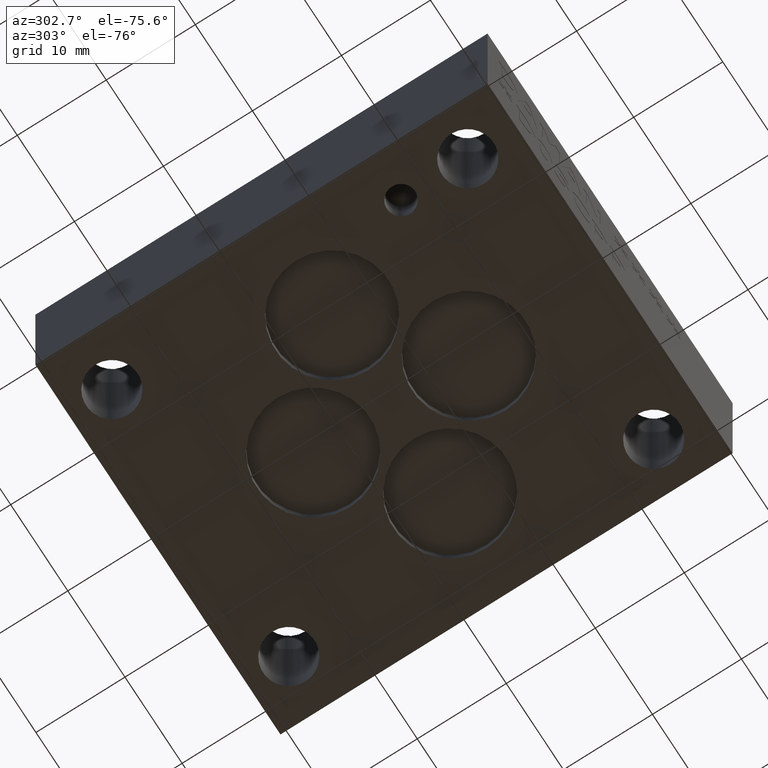
[diagram: clean part render]
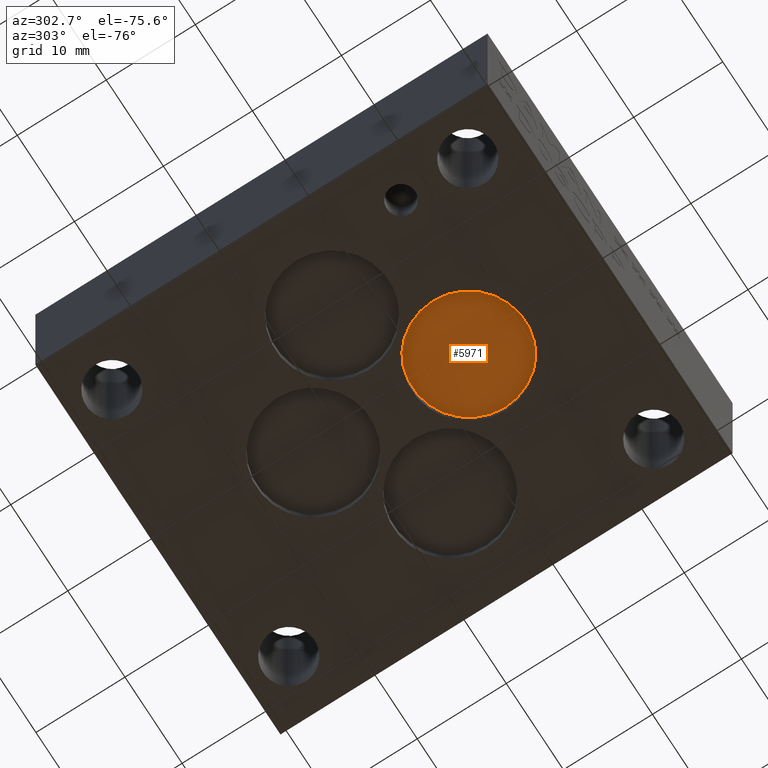
[diagram: same view with one face highlighted and labeled with its STEP entity id]
A machine part, auxiliary view. The second image highlights one B-rep face of the part: STEP entity #5971.
In plain terms, the highlighted planar face has unit normal (0, 0, -1).
Its self-contained STEP definition (entity closure, byte-faithful):
#29=CIRCLE('',#6217,6.35);
#30=CIRCLE('',#6218,6.35);
#293=PLANE('',#6219);
#584=FACE_OUTER_BOUND('',#904,.T.);
#904=EDGE_LOOP('',(#5260,#5261));
#2866=VERTEX_POINT('',#9997);
#2867=VERTEX_POINT('',#9999);
#3673=EDGE_CURVE('',#2867,#2866,#29,.T.);
#3674=EDGE_CURVE('',#2866,#2867,#30,.T.);
#5260=ORIENTED_EDGE('',*,*,#3673,.T.);
#5261=ORIENTED_EDGE('',*,*,#3674,.T.);
#5971=ADVANCED_FACE('',(#584),#293,.T.);
#6217=AXIS2_PLACEMENT_3D('',#10000,#7300,#7301);
#6218=AXIS2_PLACEMENT_3D('',#10001,#7302,#7303);
#6219=AXIS2_PLACEMENT_3D('',#10002,#7304,#7305);
#7300=DIRECTION('center_axis',(0.,0.,-1.));
#7301=DIRECTION('ref_axis',(1.,0.,0.));
#7302=DIRECTION('center_axis',(0.,0.,-1.));
#7303=DIRECTION('ref_axis',(1.,0.,0.));
#7304=DIRECTION('center_axis',(0.,0.,-1.));
#7305=DIRECTION('ref_axis',(1.,0.,0.));
#9997=CARTESIAN_POINT('',(15.0622,15.8496,1.3208));
#9999=CARTESIAN_POINT('',(27.7622,15.8496,1.3208));
#10000=CARTESIAN_POINT('Origin',(21.4122,15.8496,1.3208));
#10001=CARTESIAN_POINT('Origin',(21.4122,15.8496,1.3208));
#10002=CARTESIAN_POINT('Origin',(21.4122,15.8496,1.3208));